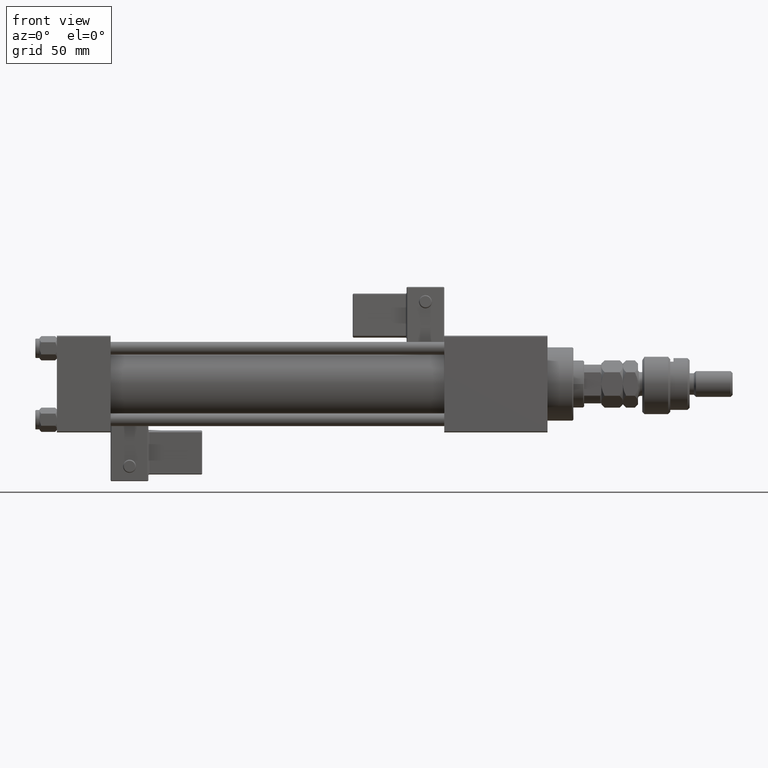
[diagram: clean part render]
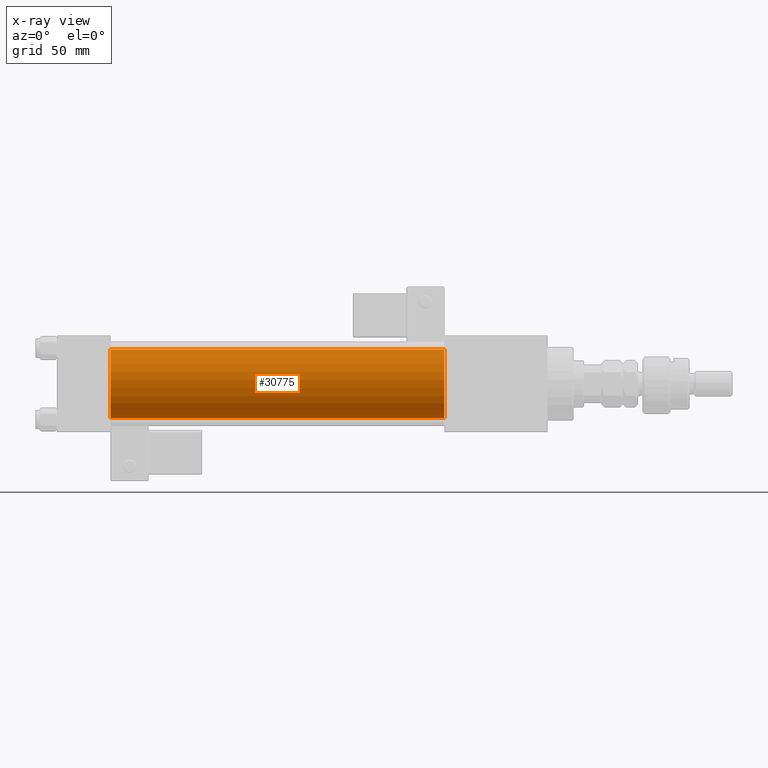
[diagram: x-ray — body ghosted, one internal face saturated and labeled with its STEP entity id]
A machine part, front view, then the same camera in x-ray: the body is ghosted and one INTERNAL B-rep face — a face not visible from any outside direction — is saturated and labeled: STEP entity #30775.
In plain terms, the highlighted cylindrical surface (edge-blend (fillet) strip) has radius 16 mm, axis along (-1, -0, -0).
Its self-contained STEP definition (entity closure, byte-faithful):
#333 = CARTESIAN_POINT ( 'NONE',  ( 25.00000000000000000, -2.602085213965210642E-15, 0.000000000000000000 ) ) ;
#504 = VERTEX_POINT ( 'NONE', #38319 ) ;
#7008 = CARTESIAN_POINT ( 'NONE',  ( 180.0000000000000000, -2.602085213965210642E-15, 0.000000000000000000 ) ) ;
#7562 = FACE_OUTER_BOUND ( 'NONE', #43099, .T. ) ;
#8856 = LINE ( 'NONE', #50875, #40978 ) ;
#11906 = EDGE_CURVE ( 'NONE', #35536, #12085, #54278, .T. ) ;
#12085 = VERTEX_POINT ( 'NONE', #22076 ) ;
#15635 = DIRECTION ( 'NONE',  ( 1.000000000000000000, 0.000000000000000000, 0.000000000000000000 ) ) ;
#19358 = AXIS2_PLACEMENT_3D ( 'NONE', #19850, #15635, #32746 ) ;
#19850 = CARTESIAN_POINT ( 'NONE',  ( 180.0000000000000000, -2.602085213965210642E-15, 0.000000000000000000 ) ) ;
#19903 = DIRECTION ( 'NONE',  ( -1.000000000000000000, -0.000000000000000000, -0.000000000000000000 ) ) ;
#22076 = CARTESIAN_POINT ( 'NONE',  ( 180.0000000000000000, -6.426503353294456087E-16, -16.00000000000000000 ) ) ;
#24402 = DIRECTION ( 'NONE',  ( 0.000000000000000000, 0.000000000000000000, 1.000000000000000000 ) ) ;
#27085 = CARTESIAN_POINT ( 'NONE',  ( 25.00000000000000000, -2.602085213965210642E-15, 16.00000000000000000 ) ) ;
#27274 = ORIENTED_EDGE ( 'NONE', *, *, #11906, .T. ) ;
#30775 = ADVANCED_FACE ( 'NONE', ( #7562 ), #54633, .F. ) ;
#32746 = DIRECTION ( 'NONE',  ( 0.000000000000000000, 0.000000000000000000, -1.000000000000000000 ) ) ;
#34278 = DIRECTION ( 'NONE',  ( 0.000000000000000000, 0.000000000000000000, -1.000000000000000000 ) ) ;
#34442 = AXIS2_PLACEMENT_3D ( 'NONE', #333, #43473, #34278 ) ;
#34650 = DIRECTION ( 'NONE',  ( -1.000000000000000000, -0.000000000000000000, -0.000000000000000000 ) ) ;
#35536 = VERTEX_POINT ( 'NONE', #39125 ) ;
#35986 = EDGE_CURVE ( 'NONE', #53033, #504, #36091, .T. ) ;
#36091 = CIRCLE ( 'NONE', #34442, 16.00000000000000000 ) ;
#38192 = DIRECTION ( 'NONE',  ( -1.000000000000000000, -0.000000000000000000, -0.000000000000000000 ) ) ;
#38319 = CARTESIAN_POINT ( 'NONE',  ( 25.00000000000000000, -6.426503353294456087E-16, -16.00000000000000000 ) ) ;
#39125 = CARTESIAN_POINT ( 'NONE',  ( 180.0000000000000000, -2.602085213965210642E-15, 16.00000000000000000 ) ) ;
#39986 = ORIENTED_EDGE ( 'NONE', *, *, #46789, .F. ) ;
#40978 = VECTOR ( 'NONE', #34650, 1000.000000000000000 ) ;
#41498 = EDGE_CURVE ( 'NONE', #12085, #504, #42105, .T. ) ;
#42105 = LINE ( 'NONE', #47146, #42592 ) ;
#42592 = VECTOR ( 'NONE', #38192, 1000.000000000000000 ) ;
#43099 = EDGE_LOOP ( 'NONE', ( #27274, #47076, #45040, #39986 ) ) ;
#43473 = DIRECTION ( 'NONE',  ( 1.000000000000000000, 0.000000000000000000, 0.000000000000000000 ) ) ;
#45040 = ORIENTED_EDGE ( 'NONE', *, *, #35986, .F. ) ;
#46789 = EDGE_CURVE ( 'NONE', #35536, #53033, #8856, .T. ) ;
#47076 = ORIENTED_EDGE ( 'NONE', *, *, #41498, .T. ) ;
#47146 = CARTESIAN_POINT ( 'NONE',  ( 180.0000000000000000, -6.426503353294456087E-16, -16.00000000000000000 ) ) ;
#50875 = CARTESIAN_POINT ( 'NONE',  ( 180.0000000000000000, -2.602085213965210642E-15, 16.00000000000000000 ) ) ;
#53033 = VERTEX_POINT ( 'NONE', #27085 ) ;
#54278 = CIRCLE ( 'NONE', #19358, 16.00000000000000000 ) ;
#54633 = CYLINDRICAL_SURFACE ( 'NONE', #54812, 16.00000000000000000 ) ;
#54812 = AXIS2_PLACEMENT_3D ( 'NONE', #7008, #19903, #24402 ) ;